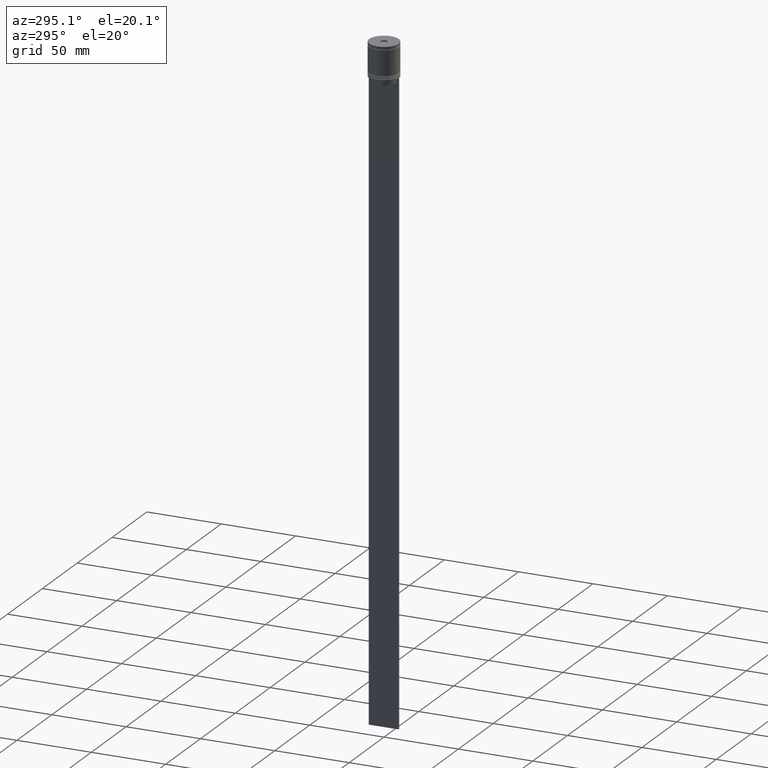
[diagram: clean part render]
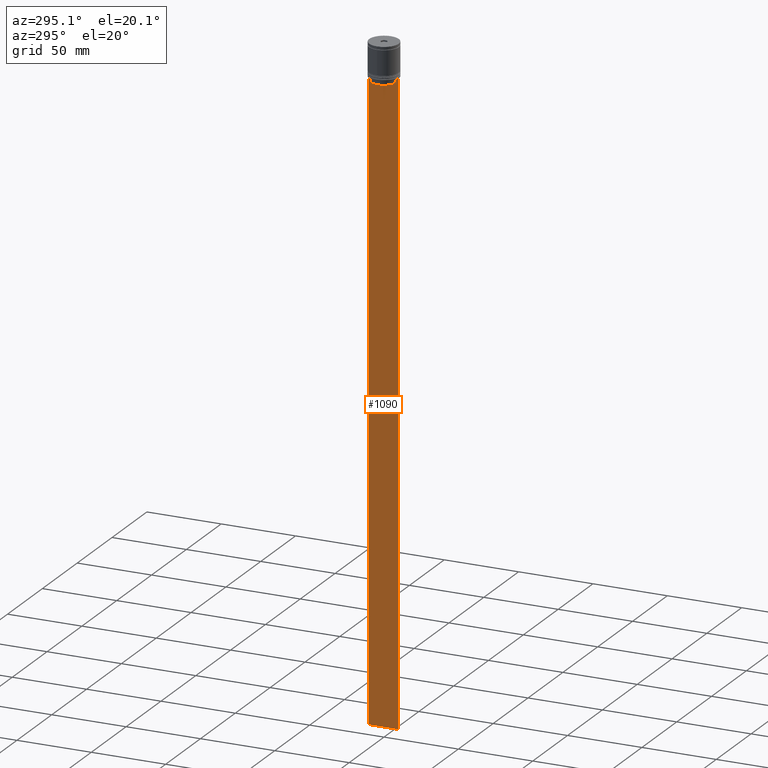
[diagram: same view with one face highlighted and labeled with its STEP entity id]
A machine part, auxiliary view. The second image highlights one B-rep face of the part: STEP entity #1090.
In plain terms, the highlighted planar face has unit normal (-1, 0, 0).
Its self-contained STEP definition (entity closure, byte-faithful):
#17 = VERTEX_POINT ( 'NONE', #496 ) ;
#56 = CARTESIAN_POINT ( 'NONE',  ( -0.5000000000000000000, -8.385105843100610912, -25.50000000000000000 ) ) ;
#61 = CARTESIAN_POINT ( 'NONE',  ( -0.5000000000000000000, 8.552060201981374732, -22.83334167021640582 ) ) ;
#82 = CARTESIAN_POINT ( 'NONE',  ( -0.5000000000000000000, -8.885943956609226646, -22.50000000000000000 ) ) ;
#84 = CARTESIAN_POINT ( 'NONE',  ( -0.5000000000000000000, 8.400000000000000355, -25.50000000000000000 ) ) ;
#90 = CARTESIAN_POINT ( 'NONE',  ( -0.5000000000000000000, 8.719005771582342135, -22.66667453442325098 ) ) ;
#93 = LINE ( 'NONE', #84, #1404 ) ;
#97 = CARTESIAN_POINT ( 'NONE',  ( -0.5000000000000000000, 8.385105843100610912, 0.000000000000000000 ) ) ;
#101 = FACE_OUTER_BOUND ( 'NONE', #1460, .T. ) ;
#146 = CARTESIAN_POINT ( 'NONE',  ( -0.5000000000000000000, -10.00000000000000178, -22.50000000000000000 ) ) ;
#161 = ORIENTED_EDGE ( 'NONE', *, *, #1668, .F. ) ;
#197 = VERTEX_POINT ( 'NONE', #1195 ) ;
#238 = CARTESIAN_POINT ( 'NONE',  ( -0.5000000000000000000, 9.887365675446622149, -22.50000000000000000 ) ) ;
#242 = DIRECTION ( 'NONE',  ( 0.000000000000000000, -1.000000000000000000, 0.000000000000000000 ) ) ;
#263 = DIRECTION ( 'NONE',  ( 0.000000000000000000, 0.000000000000000000, -1.000000000000000000 ) ) ;
#267 = DIRECTION ( 'NONE',  ( 0.000000000000000000, -1.000000000000000000, 0.000000000000000000 ) ) ;
#271 = ORIENTED_EDGE ( 'NONE', *, *, #1978, .F. ) ;
#275 = B_SPLINE_CURVE_WITH_KNOTS ( 'NONE', 3,
 ( #1689, #1543, #699, #82 ),
 .UNSPECIFIED., .F., .F.,
 ( 4, 4 ),
 ( 0.03898465126933125385, 0.03969388910599652709 ),
 .UNSPECIFIED. ) ;
#284 = DIRECTION ( 'NONE',  ( -1.000000000000000000, 0.000000000000000000, 0.000000000000000000 ) ) ;
#301 = LINE ( 'NONE', #146, #2006 ) ;
#309 = ORIENTED_EDGE ( 'NONE', *, *, #1004, .F. ) ;
#435 = CARTESIAN_POINT ( 'NONE',  ( -0.5000000000000000000, -8.385105843100610912, 0.000000000000000000 ) ) ;
#440 = ORIENTED_EDGE ( 'NONE', *, *, #1467, .F. ) ;
#452 = VERTEX_POINT ( 'NONE', #56 ) ;
#465 = ORIENTED_EDGE ( 'NONE', *, *, #956, .F. ) ;
#473 = CARTESIAN_POINT ( 'NONE',  ( -0.5000000000000000000, -10.00000000000000178, -22.50000000000000000 ) ) ;
#496 = CARTESIAN_POINT ( 'NONE',  ( -0.5000000000000000000, 8.385105843100610912, -23.00000000000000000 ) ) ;
#498 = ORIENTED_EDGE ( 'NONE', *, *, #568, .F. ) ;
#547 = EDGE_CURVE ( 'NONE', #771, #1281, #1222, .T. ) ;
#568 = EDGE_CURVE ( 'NONE', #17, #937, #1992, .T. ) ;
#576 = ORIENTED_EDGE ( 'NONE', *, *, #1388, .F. ) ;
#687 = CARTESIAN_POINT ( 'NONE',  ( -0.5000000000000000000, -10.00000000000000178, -22.50000000000000000 ) ) ;
#690 = CARTESIAN_POINT ( 'NONE',  ( -0.5000000000000000000, 8.385105843100610912, -25.50000000000000000 ) ) ;
#699 = CARTESIAN_POINT ( 'NONE',  ( -0.5000000000000000000, -8.719005764482783860, -22.66667454151159689 ) ) ;
#734 = CARTESIAN_POINT ( 'NONE',  ( -0.5000000000000000000, -10.00000000000000178, -2.475015605499213844 ) ) ;
#766 = DIRECTION ( 'NONE',  ( -0.000000000000000000, -0.000000000000000000, 1.000000000000000000 ) ) ;
#771 = VERTEX_POINT ( 'NONE', #973 ) ;
#800 = ORIENTED_EDGE ( 'NONE', *, *, #547, .F. ) ;
#818 = LINE ( 'NONE', #1496, #2002 ) ;
#827 = LINE ( 'NONE', #473, #1230 ) ;
#847 = CARTESIAN_POINT ( 'NONE',  ( -0.5000000000000000000, -8.885943956609226646, -22.50000000000000000 ) ) ;
#891 = VECTOR ( 'NONE', #1148, 1000.000000000000000 ) ;
#893 = ORIENTED_EDGE ( 'NONE', *, *, #1286, .F. ) ;
#908 = EDGE_CURVE ( 'NONE', #2015, #1721, #818, .T. ) ;
#921 = VERTEX_POINT ( 'NONE', #1636 ) ;
#937 = VERTEX_POINT ( 'NONE', #690 ) ;
#956 = EDGE_CURVE ( 'NONE', #1281, #1721, #1821, .T. ) ;
#973 = CARTESIAN_POINT ( 'NONE',  ( -0.5000000000000000000, -10.00000000000000178, -22.50000000000000000 ) ) ;
#980 = ORIENTED_EDGE ( 'NONE', *, *, #1940, .F. ) ;
#1004 = EDGE_CURVE ( 'NONE', #937, #452, #93, .T. ) ;
#1010 = DIRECTION ( 'NONE',  ( 0.000000000000000000, 0.000000000000000000, -1.000000000000000000 ) ) ;
#1020 = CARTESIAN_POINT ( 'NONE',  ( -0.5000000000000000000, -10.00000000000000178, -444.5000000000000000 ) ) ;
#1072 = DIRECTION ( 'NONE',  ( 0.000000000000000000, -1.000000000000000000, 0.000000000000000000 ) ) ;
#1090 = ADVANCED_FACE ( 'NONE', ( #101 ), #1213, .T. ) ;
#1148 = DIRECTION ( 'NONE',  ( 0.000000000000000000, -1.000000000000000000, 0.000000000000000000 ) ) ;
#1158 = DIRECTION ( 'NONE',  ( 0.000000000000000000, -1.000000000000000000, 0.000000000000000000 ) ) ;
#1178 = CARTESIAN_POINT ( 'NONE',  ( -0.5000000000000000000, -10.00000000000000178, -444.5000000000000000 ) ) ;
#1190 = DIRECTION ( 'NONE',  ( 0.000000000000000000, 1.000000000000000000, 0.000000000000000000 ) ) ;
#1195 = CARTESIAN_POINT ( 'NONE',  ( -0.5000000000000000000, -9.887365675446622149, -22.50000000000000000 ) ) ;
#1213 = PLANE ( 'NONE',  #1944 ) ;
#1222 = LINE ( 'NONE', #1843, #2000 ) ;
#1230 = VECTOR ( 'NONE', #1158, 1000.000000000000000 ) ;
#1275 = VERTEX_POINT ( 'NONE', #1461 ) ;
#1281 = VERTEX_POINT ( 'NONE', #1178 ) ;
#1286 = EDGE_CURVE ( 'NONE', #2015, #1951, #827, .T. ) ;
#1324 = CARTESIAN_POINT ( 'NONE',  ( -0.5000000000000000000, 9.999999999999998224, -444.5000000000000000 ) ) ;
#1382 = VERTEX_POINT ( 'NONE', #847 ) ;
#1388 = EDGE_CURVE ( 'NONE', #197, #771, #1939, .T. ) ;
#1404 = VECTOR ( 'NONE', #242, 1000.000000000000000 ) ;
#1433 = CARTESIAN_POINT ( 'NONE',  ( -0.5000000000000000000, 9.999999999999994671, -22.50000000000000000 ) ) ;
#1460 = EDGE_LOOP ( 'NONE', ( #980, #271, #893, #2054, #465, #800, #576, #1657, #440, #161, #309, #498 ) ) ;
#1461 = CARTESIAN_POINT ( 'NONE',  ( -0.5000000000000000000, -8.385105843100610912, -23.00000000000000000 ) ) ;
#1467 = EDGE_CURVE ( 'NONE', #1275, #1382, #275, .T. ) ;
#1496 = CARTESIAN_POINT ( 'NONE',  ( -0.5000000000000000000, 9.999999999999998224, -2.475015605499213844 ) ) ;
#1514 = CARTESIAN_POINT ( 'NONE',  ( -0.5000000000000000000, 8.885943956609226646, -22.50000000000000000 ) ) ;
#1543 = CARTESIAN_POINT ( 'NONE',  ( -0.5000000000000000000, -8.552060194457768105, -22.83334167772666845 ) ) ;
#1556 = DIRECTION ( 'NONE',  ( 0.000000000000000000, 0.000000000000000000, -1.000000000000000000 ) ) ;
#1578 = VECTOR ( 'NONE', #1190, 1000.000000000000000 ) ;
#1589 = EDGE_CURVE ( 'NONE', #1382, #197, #301, .T. ) ;
#1591 = DIRECTION ( 'NONE',  ( 0.000000000000000000, 0.000000000000000000, 1.000000000000000000 ) ) ;
#1636 = CARTESIAN_POINT ( 'NONE',  ( -0.5000000000000000000, 8.885943956609226646, -22.50000000000000000 ) ) ;
#1657 = ORIENTED_EDGE ( 'NONE', *, *, #1589, .F. ) ;
#1668 = EDGE_CURVE ( 'NONE', #452, #1275, #1892, .T. ) ;
#1689 = CARTESIAN_POINT ( 'NONE',  ( -0.5000000000000000000, -8.385105843100610912, -23.00000000000000000 ) ) ;
#1690 = VECTOR ( 'NONE', #766, 1000.000000000000000 ) ;
#1709 = VECTOR ( 'NONE', #263, 1000.000000000000000 ) ;
#1721 = VERTEX_POINT ( 'NONE', #1324 ) ;
#1814 = VECTOR ( 'NONE', #267, 1000.000000000000000 ) ;
#1821 = LINE ( 'NONE', #1020, #1578 ) ;
#1843 = CARTESIAN_POINT ( 'NONE',  ( -0.5000000000000000000, -10.00000000000000178, -2.475015605499213844 ) ) ;
#1882 = LINE ( 'NONE', #1901, #1814 ) ;
#1892 = LINE ( 'NONE', #435, #1690 ) ;
#1901 = CARTESIAN_POINT ( 'NONE',  ( -0.5000000000000000000, -10.00000000000000178, -22.50000000000000000 ) ) ;
#1939 = LINE ( 'NONE', #687, #891 ) ;
#1940 = EDGE_CURVE ( 'NONE', #921, #17, #2036, .T. ) ;
#1944 = AXIS2_PLACEMENT_3D ( 'NONE', #734, #284, #1591 ) ;
#1951 = VERTEX_POINT ( 'NONE', #238 ) ;
#1978 = EDGE_CURVE ( 'NONE', #1951, #921, #1882, .T. ) ;
#1992 = LINE ( 'NONE', #97, #1709 ) ;
#2000 = VECTOR ( 'NONE', #1556, 1000.000000000000000 ) ;
#2002 = VECTOR ( 'NONE', #1010, 1000.000000000000000 ) ;
#2006 = VECTOR ( 'NONE', #1072, 1000.000000000000000 ) ;
#2015 = VERTEX_POINT ( 'NONE', #1433 ) ;
#2036 = B_SPLINE_CURVE_WITH_KNOTS ( 'NONE', 3,
 ( #1514, #90, #61, #2046 ),
 .UNSPECIFIED., .F., .F.,
 ( 4, 4 ),
 ( 0.01511546479386905242, 0.01582316445439076874 ),
 .UNSPECIFIED. ) ;
#2046 = CARTESIAN_POINT ( 'NONE',  ( -0.5000000000000000000, 8.385105843100610912, -23.00000000000000000 ) ) ;
#2054 = ORIENTED_EDGE ( 'NONE', *, *, #908, .T. ) ;